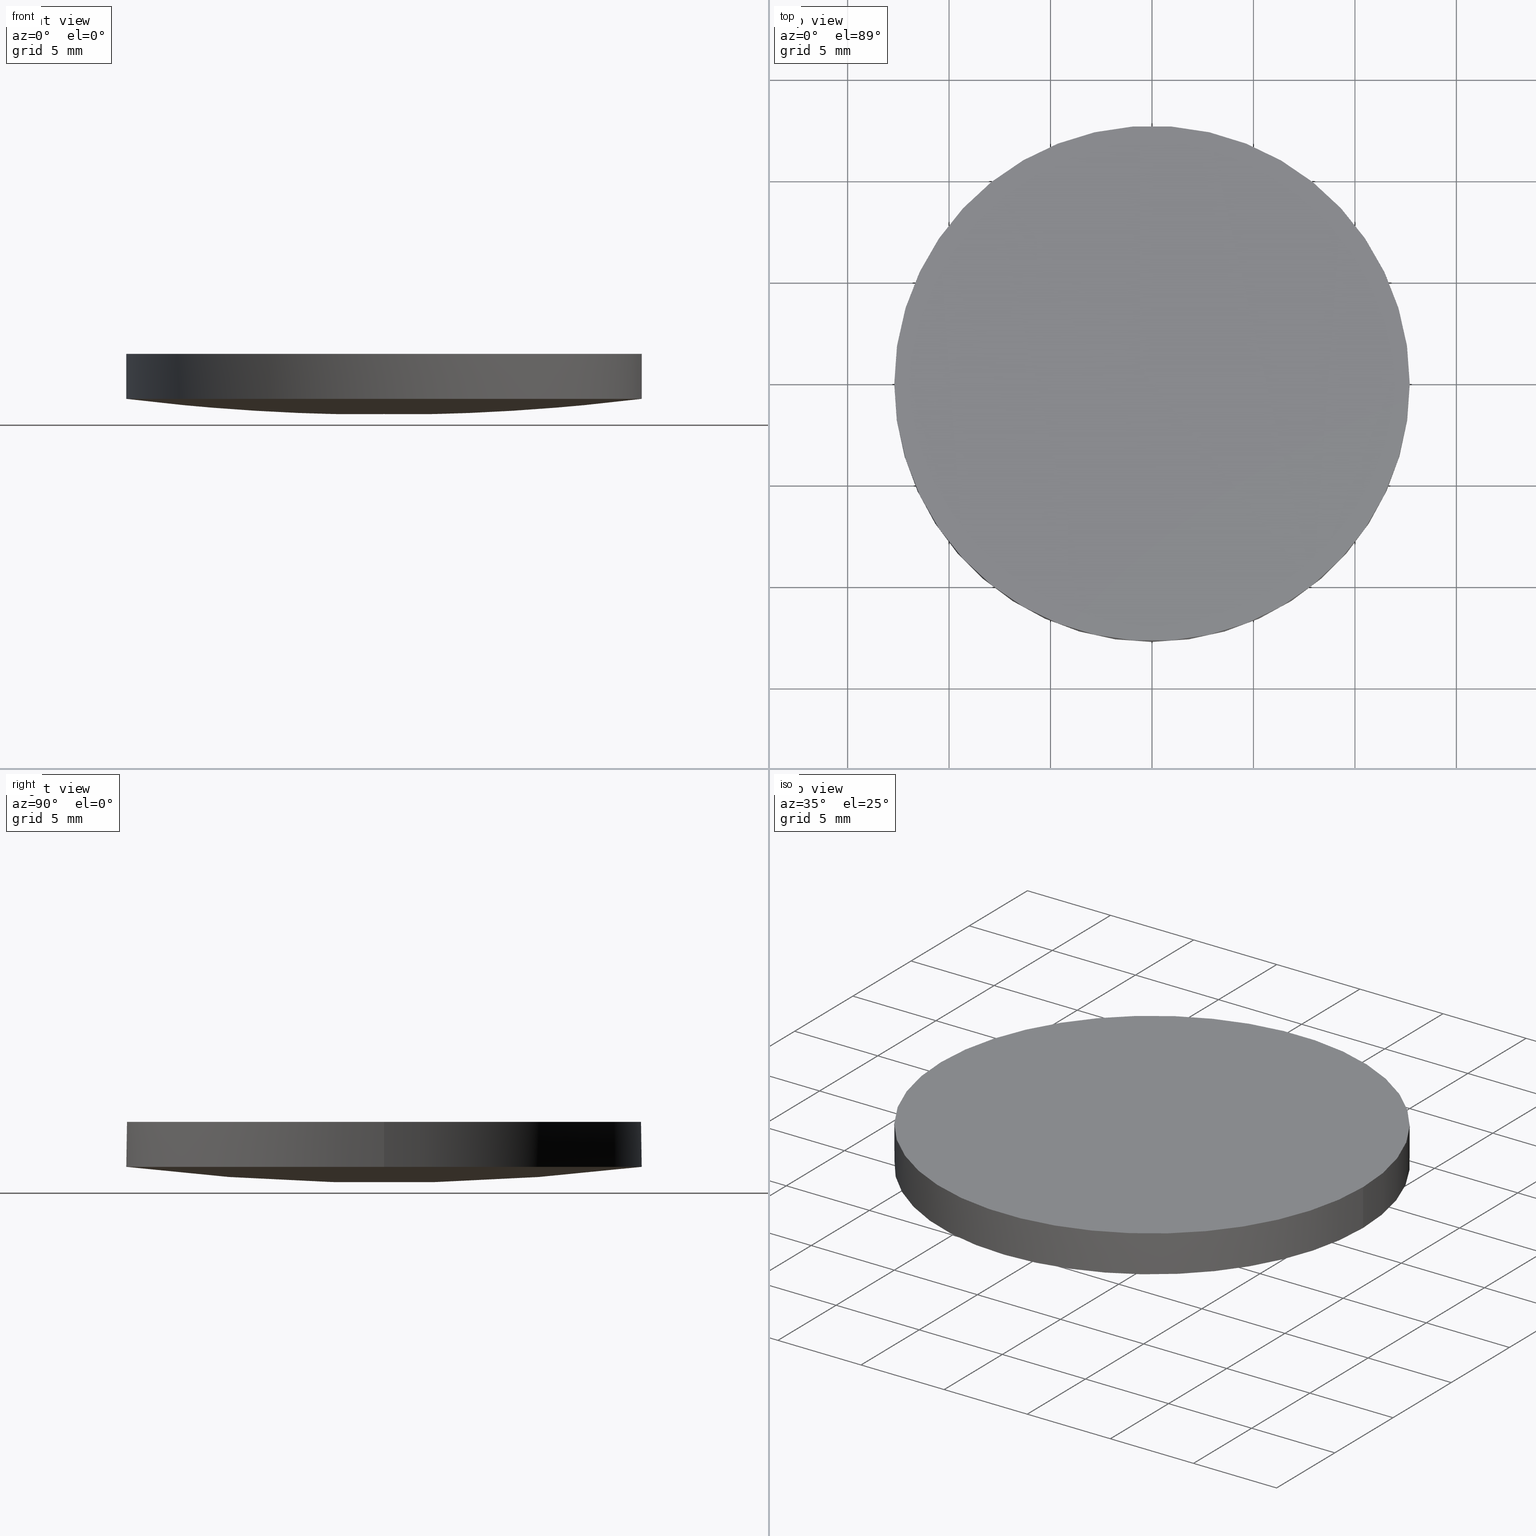
[diagram: canonical four-view strip — front | top / right | iso, engineering-drawing reading convention]
A machine part, canonical four-view strip (front | top / right | iso — engineering-drawing reading convention). The complete STEP part file that produces these views, byte-faithful:
ISO-10303-21;
HEADER;
FILE_DESCRIPTION (( 'STEP AP203' ),
    '1' );
FILE_NAME ('110-0231E BK7 pl-cx 25.4 F200.STEP',
    '2018-12-21T06:49:29',
    ( '' ),
    ( '' ),
    'SwSTEP 2.0',
    'SolidWorks 2017',
    '' );
FILE_SCHEMA (( 'CONFIG_CONTROL_DESIGN' ));
ENDSEC;

DATA;
#1 = APPROVAL_DATE_TIME ( #134, #88 ) ;
#2 = ORIENTED_EDGE ( 'NONE', *, *, #122, .F. ) ;
#3 =( NAMED_UNIT ( * ) PLANE_ANGLE_UNIT ( ) SI_UNIT ( $, .RADIAN. ) );
#4 = DIRECTION ( 'NONE',  ( 1.000000000000000000, 0.0000000000000000000, 0.0000000000000000000 ) ) ;
#5 = SECURITY_CLASSIFICATION ( '', '', #59 ) ;
#6 = PERSON_AND_ORGANIZATION ( #32, #155 ) ;
#7 = FACE_OUTER_BOUND ( 'NONE', #196, .T. ) ;
#8 = PRODUCT_DEFINITION_SHAPE ( 'NONE', 'NONE',  #107 ) ;
#9 = ADVANCED_BREP_SHAPE_REPRESENTATION ( '110-0231E BK7 pl-cx 25.4 F200', ( #45, #81 ), #161 ) ;
#10 = AXIS2_PLACEMENT_3D ( 'NONE', #68, #56, #140 ) ;
#11 = EDGE_CURVE ( 'NONE', #185, #28, #233, .T. ) ;
#12 = LINE ( 'NONE', #175, #201 ) ;
#13 = ORIENTED_EDGE ( 'NONE', *, *, #17, .F. ) ;
#14 = CC_DESIGN_DATE_AND_TIME_ASSIGNMENT ( #168, #197, ( #5 ) ) ;
#15 = ORIENTED_EDGE ( 'NONE', *, *, #205, .T. ) ;
#16 = CARTESIAN_POINT ( 'NONE',  ( 4.283202722934241500, -4.306003573673877800, -0.2678556109025222500 ) ) ;
#17 = EDGE_CURVE ( 'NONE', #97, #189, #12, .T. ) ;
#18 = CARTESIAN_POINT ( 'NONE',  ( -2.233903847635022000E-014, -4.306003573673876900, -0.2678556109025210800 ) ) ;
#19 = DIRECTION ( 'NONE',  ( 0.0000000000000000000, 0.0000000000000000000, 1.000000000000000000 ) ) ;
#20 = ORIENTED_EDGE ( 'NONE', *, *, #188, .T. ) ;
#21 = MECHANICAL_CONTEXT ( 'NONE', #23, 'mechanical' ) ;
#22 = PLANE ( 'NONE',  #132 ) ;
#23 = APPLICATION_CONTEXT ( 'configuration controlled 3d designs of mechanical parts and assemblies' ) ;
#24 = ORIENTED_EDGE ( 'NONE', *, *, #188, .F. ) ;
#25 = ORIENTED_EDGE ( 'NONE', *, *, #227, .T. ) ;
#26 = DATE_AND_TIME ( #113, #29 ) ;
#27 = AXIS2_PLACEMENT_3D ( 'NONE', #116, #129, #39 ) ;
#28 = VERTEX_POINT ( 'NONE', #86 ) ;
#29 = LOCAL_TIME ( 8, 49, 29.00000000000000000, #232 ) ;
#30 = CIRCLE ( 'NONE', #60, 103.6999999999999900 ) ;
#31 = EDGE_CURVE ( 'NONE', #177, #97, #159, .T. ) ;
#32 = PERSON ( 'UNSPECIFIED', 'UNSPECIFIED', 'UNSPECIFIED', ('UNSPECIFIED'), ('UNSPECIFIED'), ('UNSPECIFIED') ) ;
#33 = CARTESIAN_POINT ( 'NONE',  ( 12.80881302033464300, 4.306003573673873300, 0.5241825361214709200 ) ) ;
#34 = VECTOR ( 'NONE', #90, 1000.000000000000000 ) ;
#35 = DIRECTION ( 'NONE',  ( 0.0000000000000000000, -1.000000000000000000, 0.0000000000000000000 ) ) ;
#36 = ORIENTED_EDGE ( 'NONE', *, *, #11, .F. ) ;
#37 = CARTESIAN_POINT ( 'NONE',  ( -2.204210410614834700E-014, 12.69999999999999000, 0.7806140710118724100 ) ) ;
#38 = LOCAL_TIME ( 8, 49, 29.00000000000000000, #119 ) ;
#39 = DIRECTION ( 'NONE',  ( 1.000000000000000000, 0.0000000000000000000, 0.0000000000000000000 ) ) ;
#40 = APPROVAL_STATUS ( 'not_yet_approved' ) ;
#41 = CARTESIAN_POINT ( 'NONE',  ( 4.996003610813200500E-016, 2.442490654175340100E-015, 3.000000000000000000 ) ) ;
#42 = COORDINATED_UNIVERSAL_TIME_OFFSET ( 2, 0, .AHEAD. ) ;
#43 = CYLINDRICAL_SURFACE ( 'NONE', #63, 12.69999999999999900 ) ;
#44 = AXIS2_PLACEMENT_3D ( 'NONE', #131, #112, #167 ) ;
#45 = MANIFOLD_SOLID_BREP ( 'Imported1', #229 ) ;
#46 = DATE_AND_TIME ( #77, #127 ) ;
#47 = FACE_OUTER_BOUND ( 'NONE', #135, .T. ) ;
#48 = PRODUCT_RELATED_PRODUCT_CATEGORY ( 'detail', '', ( #178 ) ) ;
#49 = APPROVAL_PERSON_ORGANIZATION ( #89, #88, #170 ) ;
#50 = CARTESIAN_POINT ( 'NONE',  ( 4.996003610813200500E-016, 2.442490654175340100E-015, 0.7806140710118689700 ) ) ;
#51 = PERSON_AND_ORGANIZATION ( #32, #155 ) ;
#52 = COORDINATED_UNIVERSAL_TIME_OFFSET ( 2, 0, .AHEAD. ) ;
#53 = CARTESIAN_POINT ( 'NONE',  ( 12.67732285009354600, -12.85161962313845200, 1.583344363337779700 ) ) ;
#54 = ORIENTED_EDGE ( 'NONE', *, *, #11, .T. ) ;
#55 = CARTESIAN_POINT ( 'NONE',  ( 7.105427357601000300E-015, -7.105427357601000300E-015, 103.7000000000000000 ) ) ;
#56 = DIRECTION ( 'NONE',  ( -0.0000000000000000000, -0.0000000000000000000, -1.000000000000000000 ) ) ;
#57 = APPROVAL_STATUS ( 'not_yet_approved' ) ;
#58 = ORIENTED_EDGE ( 'NONE', *, *, #67, .T. ) ;
#59 = SECURITY_CLASSIFICATION_LEVEL ( 'unclassified' ) ;
#60 = AXIS2_PLACEMENT_3D ( 'NONE', #55, #191, #35 ) ;
#61 = CIRCLE ( 'NONE', #27, 12.69999999999999900 ) ;
#62 =( LENGTH_UNIT ( ) NAMED_UNIT ( * ) SI_UNIT ( .MILLI., .METRE. ) );
#63 = AXIS2_PLACEMENT_3D ( 'NONE', #211, #19, #164 ) ;
#64 = CYLINDRICAL_SURFACE ( 'NONE', #174, 12.69999999999999900 ) ;
#65 = CARTESIAN_POINT ( 'NONE',  ( 4.996003610813200500E-016, 2.442490654175340100E-015, 0.7806140710118689700 ) ) ;
#66 = DIRECTION ( 'NONE',  ( 0.0000000000000000000, 0.0000000000000000000, 1.000000000000000000 ) ) ;
#67 = EDGE_CURVE ( 'NONE', #189, #69, #111, .T. ) ;
#68 = CARTESIAN_POINT ( 'NONE',  ( 4.996003610813200500E-016, 2.442490654175340100E-015, 3.000000000000000000 ) ) ;
#69 = VERTEX_POINT ( 'NONE', #224 ) ;
#70 = AXIS2_PLACEMENT_3D ( 'NONE', #104, #225, #123 ) ;
#71 = CARTESIAN_POINT ( 'NONE',  ( -8.558240189861551900, -4.306003573673877800, -0.003506935628101813300 ) ) ;
#72 = CARTESIAN_POINT ( 'NONE',  ( -12.67732285009353400, -12.85161962313845200, 1.583344363337777100 ) ) ;
#73 = CC_DESIGN_SECURITY_CLASSIFICATION ( #5, ( #171 ) ) ;
#74 = CARTESIAN_POINT ( 'NONE',  ( -2.204210410614834700E-014, -12.69999999999999600, 0.7806140710118724100 ) ) ;
#75 = CARTESIAN_POINT ( 'NONE',  ( 0.0000000000000000000, 0.0000000000000000000, 0.0000000000000000000 ) ) ;
#76 = PERSON_AND_ORGANIZATION_ROLE ( 'creator' ) ;
#77 = CALENDAR_DATE ( 2018, 21, 12 ) ;
#78 = DIRECTION ( 'NONE',  ( 0.0000000000000000000, 0.0000000000000000000, 1.000000000000000000 ) ) ;
#79 = DIRECTION ( 'NONE',  ( -0.0000000000000000000, -0.0000000000000000000, -1.000000000000000000 ) ) ;
#80 = CC_DESIGN_PERSON_AND_ORGANIZATION_ASSIGNMENT ( #190, #184, ( #5 ) ) ;
#81 = AXIS2_PLACEMENT_3D ( 'NONE', #75, #166, #99 ) ;
#82 = APPROVAL_PERSON_ORGANIZATION ( #136, #223, #95 ) ;
#83 = AXIS2_PLACEMENT_3D ( 'NONE', #65, #206, #228 ) ;
#84 = AXIS2_PLACEMENT_3D ( 'NONE', #41, #79, #4 ) ;
#85 = EDGE_CURVE ( 'NONE', #28, #69, #200, .T. ) ;
#86 = CARTESIAN_POINT ( 'NONE',  ( 12.69999999999999900, 2.442490654175340100E-015, 0.7806140710118689700 ) ) ;
#87 = CARTESIAN_POINT ( 'NONE',  ( 12.80881302033464300, -4.306003573673876900, 0.5241825361214717000 ) ) ;
#88 = APPROVAL ( #40, 'UNSPECIFIED' ) ;
#89 = PERSON_AND_ORGANIZATION ( #32, #155 ) ;
#90 = DIRECTION ( 'NONE',  ( 0.0000000000000000000, 0.0000000000000000000, 1.000000000000000000 ) ) ;
#91 = DESIGN_CONTEXT ( 'detailed design', #199, 'design' ) ;
#92 = CARTESIAN_POINT ( 'NONE',  ( -8.558240189861551900, 4.306003573673874200, -0.003506935628102680600 ) ) ;
#93 = EDGE_LOOP ( 'NONE', ( #13, #173, #24, #103, #15 ) ) ;
#94 = CARTESIAN_POINT ( 'NONE',  ( -2.203677332352005500E-014, 12.85161962313844900, 0.7994369643092719100 ) ) ;
#95 = APPROVAL_ROLE ( '' ) ;
#96 = PERSON_AND_ORGANIZATION_ROLE ( 'creator' ) ;
#97 = VERTEX_POINT ( 'NONE', #162 ) ;
#98 = APPROVAL_ROLE ( '' ) ;
#99 = DIRECTION ( 'NONE',  ( 1.000000000000000000, 0.0000000000000000000, 0.0000000000000000000 ) ) ;
#100 = CC_DESIGN_PERSON_AND_ORGANIZATION_ASSIGNMENT ( #169, #198, ( #178 ) ) ;
#101 = PERSON_AND_ORGANIZATION ( #32, #155 ) ;
#102 = ADVANCED_FACE ( 'NONE', ( #142 ), #64, .T. ) ;
#103 = ORIENTED_EDGE ( 'NONE', *, *, #85, .T. ) ;
#104 = CARTESIAN_POINT ( 'NONE',  ( 4.996003610813200500E-016, 2.442490654175340100E-015, 0.7806140710118689700 ) ) ;
#105 = CARTESIAN_POINT ( 'NONE',  ( -2.233903847635022000E-014, 4.306003573673873300, -0.2678556109025219100 ) ) ;
#106 = CARTESIAN_POINT ( 'NONE',  ( 4.283202722934241500, 4.306003573673874200, -0.2678556109025231900 ) ) ;
#107 = PRODUCT_DEFINITION ( 'UNKNOWN', '', #171, #91 ) ;
#108 = CARTESIAN_POINT ( 'NONE',  ( -4.283202722934285100, -4.306003573673877800, -0.2678556109025300700 ) ) ;
#109 = CC_DESIGN_APPROVAL ( #88, ( #5 ) ) ;
#110 = CARTESIAN_POINT ( 'NONE',  ( -2.203677332352005500E-014, -12.85161962313845200, 0.7994369643092719100 ) ) ;
#111 = CIRCLE ( 'NONE', #10, 12.69999999999999900 ) ;
#112 = DIRECTION ( 'NONE',  ( -0.0000000000000000000, -0.0000000000000000000, -1.000000000000000000 ) ) ;
#113 = CALENDAR_DATE ( 2018, 21, 12 ) ;
#114 = APPROVAL_PERSON_ORGANIZATION ( #203, #153, #98 ) ;
#115 = APPROVAL_STATUS ( 'not_yet_approved' ) ;
#116 = CARTESIAN_POINT ( 'NONE',  ( 4.996003610813200500E-016, 2.442490654175340100E-015, 0.7806140710118689700 ) ) ;
#117 = CIRCLE ( 'NONE', #44, 12.69999999999999900 ) ;
#118 = CC_DESIGN_PERSON_AND_ORGANIZATION_ASSIGNMENT ( #6, #214, ( #171 ) ) ;
#119 = COORDINATED_UNIVERSAL_TIME_OFFSET ( 2, 0, .AHEAD. ) ;
#120 = UNCERTAINTY_MEASURE_WITH_UNIT (LENGTH_MEASURE( 1.000000000000000100E-005 ), #62, 'distance_accuracy_value', 'NONE');
#121 = ADVANCED_FACE ( 'NONE', ( #138 ), #43, .T. ) ;
#122 = EDGE_CURVE ( 'NONE', #177, #185, #30, .T. ) ;
#123 = DIRECTION ( 'NONE',  ( 1.000000000000000000, 0.0000000000000000000, 0.0000000000000000000 ) ) ;
#124 = CARTESIAN_POINT ( 'NONE',  ( -12.67732285009353400, 12.85161962313844900, 1.583344363337777100 ) ) ;
#125 = CARTESIAN_POINT ( 'NONE',  ( 8.470384706473453200, 12.85161962313845100, 1.061071941424489100 ) ) ;
#126 = CARTESIAN_POINT ( 'NONE',  ( 8.470384706473453200, -12.85161962313845400, 1.061071941424489100 ) ) ;
#127 = LOCAL_TIME ( 8, 49, 29.00000000000000000, #52 ) ;
#128 = CARTESIAN_POINT ( 'NONE',  ( -4.857225732735061100E-014, 4.306003573673873300, -0.2678556109025332400 ) ) ;
#129 = DIRECTION ( 'NONE',  ( -0.0000000000000000000, -0.0000000000000000000, -1.000000000000000000 ) ) ;
#130 = CARTESIAN_POINT ( 'NONE',  ( 0.0000000000000000000, 26.11199999999999800, 3.000000000000000000 ) ) ;
#131 = CARTESIAN_POINT ( 'NONE',  ( 4.996003610813200500E-016, 2.442490654175340100E-015, 0.7806140710118689700 ) ) ;
#132 = AXIS2_PLACEMENT_3D ( 'NONE', #130, #78, #213 ) ;
#133 = CC_DESIGN_APPROVAL ( #153, ( #107 ) ) ;
#134 = DATE_AND_TIME ( #181, #221 ) ;
#135 = EDGE_LOOP ( 'NONE', ( #20, #152, #54 ) ) ;
#136 = PERSON_AND_ORGANIZATION ( #32, #155 ) ;
#137 = CALENDAR_DATE ( 2018, 21, 12 ) ;
#138 = FACE_OUTER_BOUND ( 'NONE', #93, .T. ) ;
#139 = EDGE_LOOP ( 'NONE', ( #2, #160, #25 ) ) ;
#140 = DIRECTION ( 'NONE',  ( 1.000000000000000000, 0.0000000000000000000, 0.0000000000000000000 ) ) ;
#141 = CARTESIAN_POINT ( 'NONE',  ( 4.239233070608015000, -12.85161962313845400, 0.7994369643092708000 ) ) ;
#142 = FACE_OUTER_BOUND ( 'NONE', #154, .T. ) ;
#143 = CC_DESIGN_PERSON_AND_ORGANIZATION_ASSIGNMENT ( #101, #76, ( #107 ) ) ;
#144 = CARTESIAN_POINT ( 'NONE',  ( 12.67732285009354600, 12.85161962313844900, 1.583344363337779700 ) ) ;
#145 = ORIENTED_EDGE ( 'NONE', *, *, #67, .F. ) ;
#146 = CARTESIAN_POINT ( 'NONE',  ( 8.558240189861537700, -4.306003573673877800, -0.003506935628102463800 ) ) ;
#147 = CARTESIAN_POINT ( 'NONE',  ( -4.857225732735061100E-014, -4.306003573673876900, -0.2678556109025323500 ) ) ;
#148 = APPLICATION_PROTOCOL_DEFINITION ( 'international standard', 'config_control_design', 1994, #199 ) ;
#149 = APPROVAL_DATE_TIME ( #46, #153 ) ;
#150 = CARTESIAN_POINT ( 'NONE',  ( -4.683753385137379200E-014, 12.85161962313844900, 0.7994369643092603700 ) ) ;
#151 = ORIENTED_EDGE ( 'NONE', *, *, #85, .F. ) ;
#152 = ORIENTED_EDGE ( 'NONE', *, *, #122, .T. ) ;
#153 = APPROVAL ( #57, 'UNSPECIFIED' ) ;
#154 = EDGE_LOOP ( 'NONE', ( #219, #212, #58, #151, #36 ) ) ;
#155 = ORGANIZATION ( 'UNSPECIFIED', 'UNSPECIFIED', '' ) ;
#156 = ADVANCED_FACE ( 'NONE', ( #47 ), #172, .T. ) ;
#157 = CC_DESIGN_DATE_AND_TIME_ASSIGNMENT ( #202, #218, ( #107 ) ) ;
#158 = ADVANCED_FACE ( 'NONE', ( #222 ), #192, .T. ) ;
#159 = CIRCLE ( 'NONE', #70, 12.69999999999999900 ) ;
#160 = ORIENTED_EDGE ( 'NONE', *, *, #31, .T. ) ;
#161 =( GEOMETRIC_REPRESENTATION_CONTEXT ( 3 ) GLOBAL_UNCERTAINTY_ASSIGNED_CONTEXT ( ( #120 ) ) GLOBAL_UNIT_ASSIGNED_CONTEXT ( ( #62, #3, #235 ) ) REPRESENTATION_CONTEXT ( 'NONE', 'WORKASPACE' ) );
#162 = CARTESIAN_POINT ( 'NONE',  ( -12.69999999999999900, 3.997792089092478900E-015, 0.7806140710118689700 ) ) ;
#163 = CARTESIAN_POINT ( 'NONE',  ( -8.470384706473467400, 12.85161962313845100, 1.061071941424489600 ) ) ;
#164 = DIRECTION ( 'NONE',  ( 1.000000000000000000, 0.0000000000000000000, 0.0000000000000000000 ) ) ;
#165 = ORIENTED_EDGE ( 'NONE', *, *, #205, .F. ) ;
#166 = DIRECTION ( 'NONE',  ( 0.0000000000000000000, 0.0000000000000000000, 1.000000000000000000 ) ) ;
#167 = DIRECTION ( 'NONE',  ( 1.000000000000000000, 0.0000000000000000000, 0.0000000000000000000 ) ) ;
#168 = DATE_AND_TIME ( #137, #207 ) ;
#169 = PERSON_AND_ORGANIZATION ( #32, #155 ) ;
#170 = APPROVAL_ROLE ( '' ) ;
#171 = PRODUCT_DEFINITION_FORMATION_WITH_SPECIFIED_SOURCE ( 'ANY', '', #178, .NOT_KNOWN. ) ;
#172 =( BOUNDED_SURFACE ( )  B_SPLINE_SURFACE ( 3, 3, ( 
 ( #110, #141, #126, #53 ),
 ( #18, #16, #146, #87 ),
 ( #105, #106, #182, #33 ),
 ( #94, #231, #125, #144 ) ),
 .UNSPECIFIED., .F., .F., .T. ) 
 B_SPLINE_SURFACE_WITH_KNOTS ( ( 4, 4 ),
 ( 4, 4 ),
 ( 0.0000000000000000000, 1.000000000000000000 ),
 ( 0.0000000000000000000, 1.000000000000000000 ),
 .UNSPECIFIED. ) 
 GEOMETRIC_REPRESENTATION_ITEM ( )  RATIONAL_B_SPLINE_SURFACE ( (
 ( 1.000000000000000000, 0.9987291042808929000, 0.9987291042808929000, 1.000000000000000000),
 ( 0.9948605788215412200, 0.9935962147708085100, 0.9935962147708085100, 0.9948605788215412200),
 ( 0.9948605788215412200, 0.9935962147708085100, 0.9935962147708085100, 0.9948605788215412200),
 ( 1.000000000000000000, 0.9987291042808929000, 0.9987291042808929000, 1.000000000000000000) ) ) 
 REPRESENTATION_ITEM ( '' )  SURFACE ( )  );
#173 = ORIENTED_EDGE ( 'NONE', *, *, #31, .F. ) ;
#174 = AXIS2_PLACEMENT_3D ( 'NONE', #50, #195, #180 ) ;
#175 = CARTESIAN_POINT ( 'NONE',  ( -12.69999999999999900, 3.997792089092478900E-015, 0.7806140710118689700 ) ) ;
#176 = CARTESIAN_POINT ( 'NONE',  ( 12.69999999999999900, 2.442490654175340100E-015, 0.7806140710118689700 ) ) ;
#177 = VERTEX_POINT ( 'NONE', #74 ) ;
#178 = PRODUCT ( '110-0231E BK7 pl-cx 25.4 F200', '110-0231E BK7 pl-cx 25.4 F200', '', ( #21 ) ) ;
#179 = CARTESIAN_POINT ( 'NONE',  ( -4.239233070608056800, -12.85161962313845400, 0.7994369643092627000 ) ) ;
#180 = DIRECTION ( 'NONE',  ( 1.000000000000000000, 0.0000000000000000000, 0.0000000000000000000 ) ) ;
#181 = CALENDAR_DATE ( 2018, 21, 12 ) ;
#182 = CARTESIAN_POINT ( 'NONE',  ( 8.558240189861537700, 4.306003573673874200, -0.003506935628103222700 ) ) ;
#183 = CC_DESIGN_APPROVAL ( #223, ( #171 ) ) ;
#184 = PERSON_AND_ORGANIZATION_ROLE ( 'classification_officer' ) ;
#185 = VERTEX_POINT ( 'NONE', #37 ) ;
#186 = APPLICATION_PROTOCOL_DEFINITION ( 'international standard', 'config_control_design', 1994, #23 ) ;
#187 = COORDINATED_UNIVERSAL_TIME_OFFSET ( 2, 0, .AHEAD. ) ;
#188 = EDGE_CURVE ( 'NONE', #28, #177, #61, .T. ) ;
#189 = VERTEX_POINT ( 'NONE', #217 ) ;
#190 = PERSON_AND_ORGANIZATION ( #32, #155 ) ;
#191 = DIRECTION ( 'NONE',  ( 1.000000000000000000, 0.0000000000000000000, -2.832073977186420200E-016 ) ) ;
#192 =( BOUNDED_SURFACE ( )  B_SPLINE_SURFACE ( 3, 3, ( 
 ( #72, #230, #179, #210 ),
 ( #209, #71, #108, #147 ),
 ( #194, #92, #234, #128 ),
 ( #124, #163, #193, #150 ) ),
 .UNSPECIFIED., .F., .F., .T. ) 
 B_SPLINE_SURFACE_WITH_KNOTS ( ( 4, 4 ),
 ( 4, 4 ),
 ( 0.0000000000000000000, 1.000000000000000000 ),
 ( 0.0000000000000000000, 1.000000000000000000 ),
 .UNSPECIFIED. ) 
 GEOMETRIC_REPRESENTATION_ITEM ( )  RATIONAL_B_SPLINE_SURFACE ( (
 ( 1.000000000000000000, 0.9987291042808929000, 0.9987291042808929000, 1.000000000000000000),
 ( 0.9948605788215412200, 0.9935962147708085100, 0.9935962147708085100, 0.9948605788215412200),
 ( 0.9948605788215412200, 0.9935962147708085100, 0.9935962147708085100, 0.9948605788215412200),
 ( 1.000000000000000000, 0.9987291042808929000, 0.9987291042808929000, 1.000000000000000000) ) ) 
 REPRESENTATION_ITEM ( '' )  SURFACE ( )  );
#193 = CARTESIAN_POINT ( 'NONE',  ( -4.239233070608056800, 12.85161962313845100, 0.7994369643092627000 ) ) ;
#194 = CARTESIAN_POINT ( 'NONE',  ( -12.80881302033463100, 4.306003573673873300, 0.5241825361214681500 ) ) ;
#195 = DIRECTION ( 'NONE',  ( 0.0000000000000000000, 0.0000000000000000000, 1.000000000000000000 ) ) ;
#196 = EDGE_LOOP ( 'NONE', ( #165, #145 ) ) ;
#197 = DATE_TIME_ROLE ( 'classification_date' ) ;
#198 = PERSON_AND_ORGANIZATION_ROLE ( 'design_owner' ) ;
#199 = APPLICATION_CONTEXT ( 'configuration controlled 3d designs of mechanical parts and assemblies' ) ;
#200 = LINE ( 'NONE', #176, #34 ) ;
#201 = VECTOR ( 'NONE', #66, 1000.000000000000000 ) ;
#202 = DATE_AND_TIME ( #226, #38 ) ;
#203 = PERSON_AND_ORGANIZATION ( #32, #155 ) ;
#204 = ADVANCED_FACE ( 'NONE', ( #7 ), #22, .T. ) ;
#205 = EDGE_CURVE ( 'NONE', #69, #189, #216, .T. ) ;
#206 = DIRECTION ( 'NONE',  ( -0.0000000000000000000, -0.0000000000000000000, -1.000000000000000000 ) ) ;
#207 = LOCAL_TIME ( 8, 49, 29.00000000000000000, #187 ) ;
#208 = SHAPE_DEFINITION_REPRESENTATION ( #8, #9 ) ;
#209 = CARTESIAN_POINT ( 'NONE',  ( -12.80881302033463100, -4.306003573673876900, 0.5241825361214689200 ) ) ;
#210 = CARTESIAN_POINT ( 'NONE',  ( -4.683753385137379200E-014, -12.85161962313845200, 0.7994369643092603700 ) ) ;
#211 = CARTESIAN_POINT ( 'NONE',  ( 4.996003610813200500E-016, 2.442490654175340100E-015, 0.7806140710118689700 ) ) ;
#212 = ORIENTED_EDGE ( 'NONE', *, *, #17, .T. ) ;
#213 = DIRECTION ( 'NONE',  ( 1.000000000000000000, 0.0000000000000000000, -0.0000000000000000000 ) ) ;
#214 = PERSON_AND_ORGANIZATION_ROLE ( 'design_supplier' ) ;
#215 = APPROVAL_DATE_TIME ( #26, #223 ) ;
#216 = CIRCLE ( 'NONE', #84, 12.69999999999999900 ) ;
#217 = CARTESIAN_POINT ( 'NONE',  ( -12.69999999999999900, 3.997792089092478900E-015, 3.000000000000000000 ) ) ;
#218 = DATE_TIME_ROLE ( 'creation_date' ) ;
#219 = ORIENTED_EDGE ( 'NONE', *, *, #227, .F. ) ;
#220 = CC_DESIGN_PERSON_AND_ORGANIZATION_ASSIGNMENT ( #51, #96, ( #171 ) ) ;
#221 = LOCAL_TIME ( 8, 49, 29.00000000000000000, #42 ) ;
#222 = FACE_OUTER_BOUND ( 'NONE', #139, .T. ) ;
#223 = APPROVAL ( #115, 'UNSPECIFIED' ) ;
#224 = CARTESIAN_POINT ( 'NONE',  ( 12.69999999999999900, 2.442490654175340100E-015, 3.000000000000000000 ) ) ;
#225 = DIRECTION ( 'NONE',  ( -0.0000000000000000000, -0.0000000000000000000, -1.000000000000000000 ) ) ;
#226 = CALENDAR_DATE ( 2018, 21, 12 ) ;
#227 = EDGE_CURVE ( 'NONE', #97, #185, #117, .T. ) ;
#228 = DIRECTION ( 'NONE',  ( 1.000000000000000000, 0.0000000000000000000, 0.0000000000000000000 ) ) ;
#229 = CLOSED_SHELL ( 'NONE', ( #156, #102, #158, #121, #204 ) ) ;
#230 = CARTESIAN_POINT ( 'NONE',  ( -8.470384706473467400, -12.85161962313845400, 1.061071941424489600 ) ) ;
#231 = CARTESIAN_POINT ( 'NONE',  ( 4.239233070608015000, 12.85161962313845100, 0.7994369643092708000 ) ) ;
#232 = COORDINATED_UNIVERSAL_TIME_OFFSET ( 2, 0, .AHEAD. ) ;
#233 = CIRCLE ( 'NONE', #83, 12.69999999999999900 ) ;
#234 = CARTESIAN_POINT ( 'NONE',  ( -4.283202722934285100, 4.306003573673874200, -0.2678556109025309100 ) ) ;
#235 =( NAMED_UNIT ( * ) SI_UNIT ( $, .STERADIAN. ) SOLID_ANGLE_UNIT ( ) );
ENDSEC;
END-ISO-10303-21;
